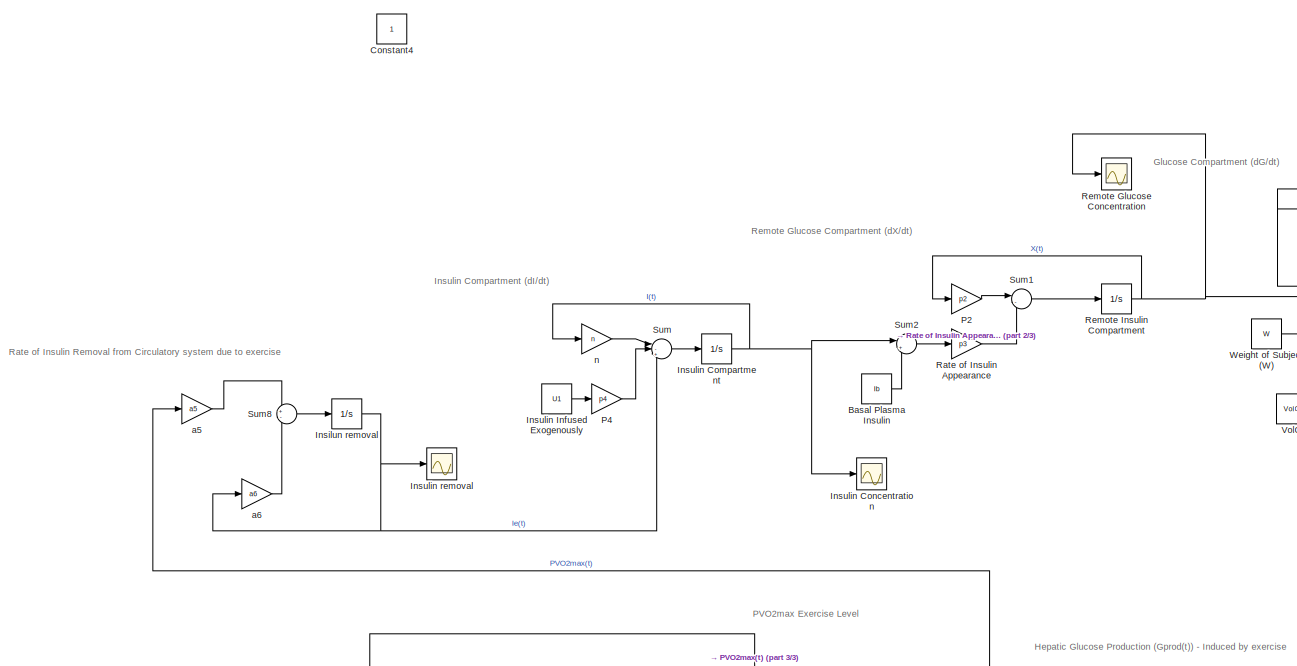
[diagram: root canvas - part 1/3, top center region]
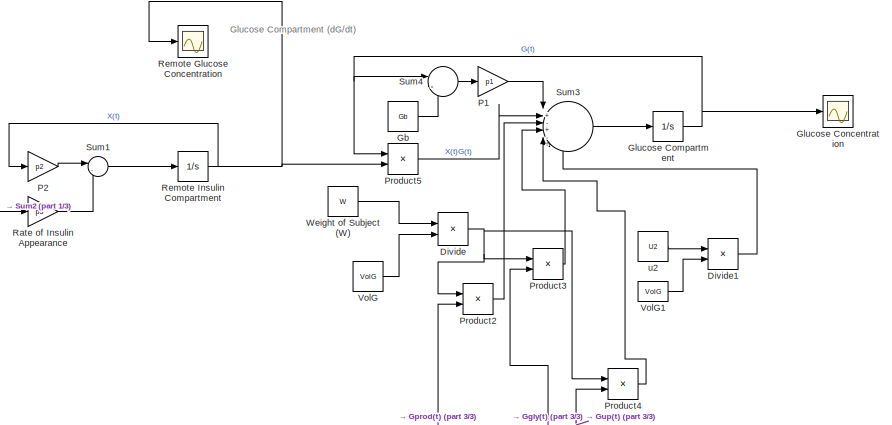
[diagram: root canvas - part 2/3, top right region]
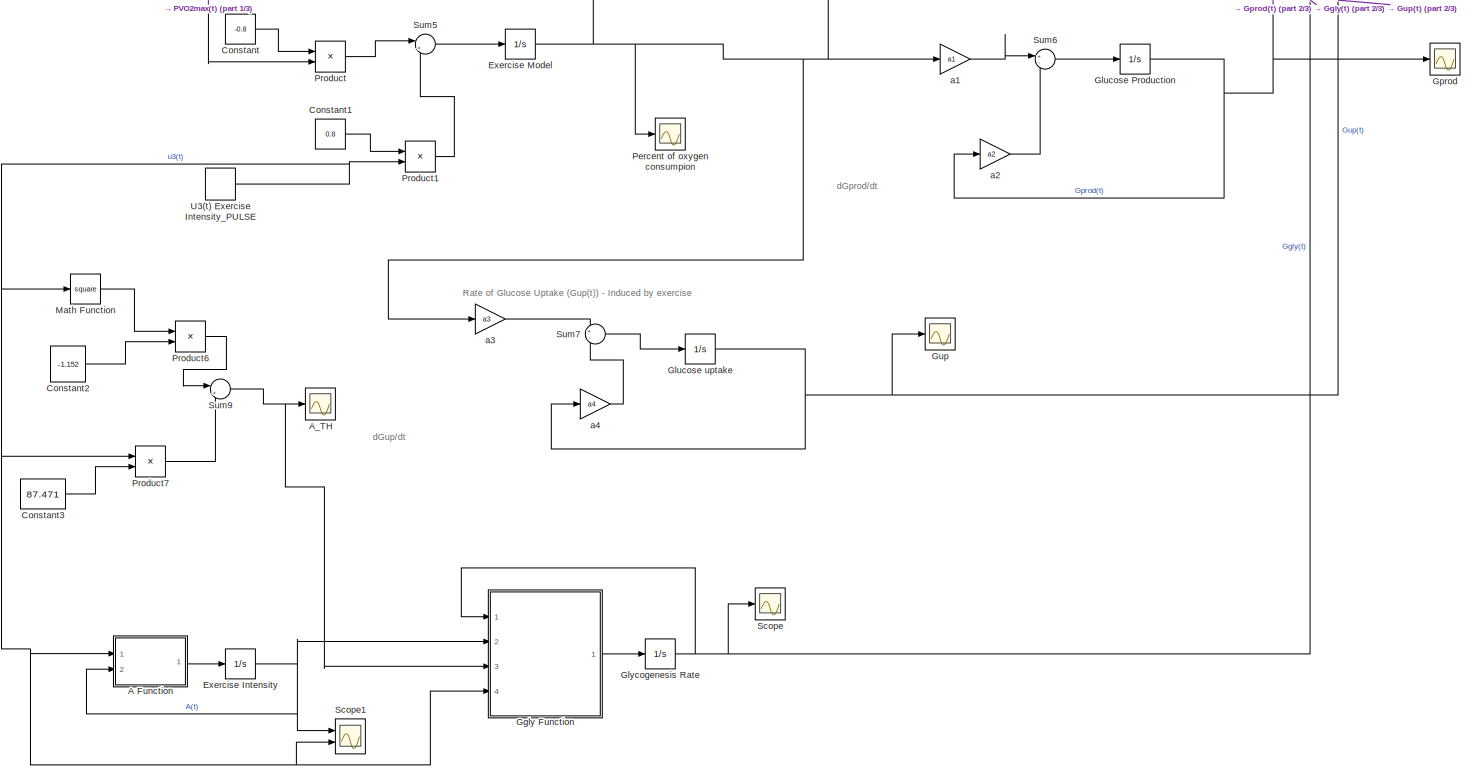
[diagram: root canvas - part 3/3, full width, bottom band]
MODEL slx_c7d6a4aab197
KIND model
CONFIG AbsTol = auto
CONFIG EnableMultiTasking = off
CONFIG FixedStep = auto
CONFIG MaxStep = auto
CONFIG MinStep = auto
CONFIG RelTol = 1e-3
CONFIG SampleTimeConstraint = Unconstrained
CONFIG SolverName = VariableStepAuto
CONFIG StartTime = 0.0
CONFIG StopTime = 2000
WORKSPACE source: mxarray member
WORKSPACE Gb = 100
WORKSPACE Ib = 0.2
WORKSPACE U1 = 0
WORKSPACE U2 = 0
WORKSPACE U3 = 0.4
WORKSPACE VolG = 117
WORKSPACE W = 70
WORKSPACE a1 = 0.00158
WORKSPACE a2 = 0.056
WORKSPACE a3 = 0.00195
WORKSPACE a4 = 0.0485
WORKSPACE a5 = 0.00125
WORKSPACE a6 = 0.075
WORKSPACE n = 0.142
WORKSPACE p1 = 0.035
WORKSPACE p2 = 0.05
WORKSPACE p3 = 2.8e-05
WORKSPACE p4 = 0.098
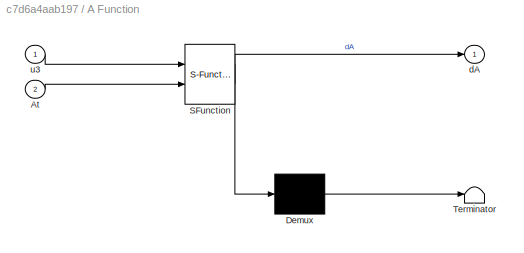
BLOCK [SubSystem] A Function
  ErrorFcn = Stateflow.Translate.translate
  PermitHierarchicalResolution = ExplicitOnly
  Ports = [2, 1]
  RequestExecContextInheritance = off
  SFBlockType = MATLAB Function
  TreatAsAtomicUnit = on
BLOCK [Demux] A Function/ Demux 
  Outputs = 1
  Ports = [1, 1]
BLOCK [S-Function] A Function/ SFunction 
  EnableBusSupport = on
  FunctionName = sf_sfun
  PortCounts = [2 2]
  Ports = [2, 2]
  SFcnIsStateOwnerBlock = off
  SFunctionDeploymentMode = off
  Tag = Stateflow S-Function 1
BLOCK [Terminator] A Function/ Terminator 
BLOCK [Inport] A Function/At
  Port = 2
BLOCK [Outport] A Function/dA
BLOCK [Inport] A Function/u3
BLOCK [Scope] A_TH
  Floating = off
  NumInputPorts = 1
  Ports = [1]
  ScopeSpecificationString = Simulink.scopes.TimeScopeBlockCfg('CurrentConfiguration', extmgr.ConfigurationSet(extmgr.Configuration('Core','General UI',true),extmgr.Configuration('Core','Source UI',true),extmgr.Configuration('Sources','WiredSimulink',true,'DataLoggingVariableName','ScopeData4'),extmgr.Configuration('Visuals','Time Domain',true,'SerializedDisplays',{struct('MinYLimReal','-0.000002','MaxYLimReal','0.000001','YL...<+1476ch>
BLOCK [Constant] Basal Plasma Insulin 
  Value = Ib
  VectorParams1D = off
BLOCK [Constant] Constant
  Value = -0.8
BLOCK [Constant] Constant1
  Value = 0.8
BLOCK [Constant] Constant2
  Value = -1.152
BLOCK [Constant] Constant3
  Value = 87.471
BLOCK [Constant] Constant4
  IOType = siggen
BLOCK [Product] Divide
  Inputs = */
  Ports = [2, 1]
BLOCK [Product] Divide1
  Inputs = */
  Ports = [2, 1]
BLOCK [Integrator] Exercise Intensity
  Ports = [1, 1]
BLOCK [Integrator] Exercise Model 
  Ports = [1, 1]
BLOCK [Constant] Gb
  NameLocation = top
  Value = Gb
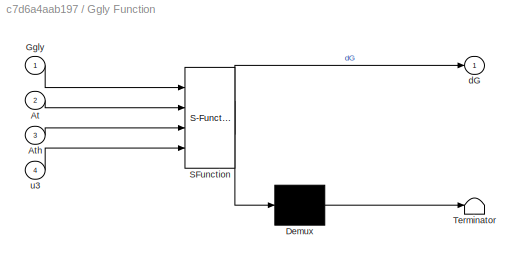
BLOCK [SubSystem] Ggly Function
  ErrorFcn = Stateflow.Translate.translate
  PermitHierarchicalResolution = ExplicitOnly
  Ports = [4, 1]
  RequestExecContextInheritance = off
  SFBlockType = MATLAB Function
  TreatAsAtomicUnit = on
BLOCK [Demux] Ggly Function/ Demux 
  Outputs = 1
  Ports = [1, 1]
BLOCK [S-Function] Ggly Function/ SFunction 
  EnableBusSupport = on
  FunctionName = sf_sfun
  PortCounts = [4 2]
  Ports = [4, 2]
  SFcnIsStateOwnerBlock = off
  SFunctionDeploymentMode = off
  Tag = Stateflow S-Function 2
BLOCK [Terminator] Ggly Function/ Terminator 
BLOCK [Inport] Ggly Function/At
  Port = 2
BLOCK [Inport] Ggly Function/Ath
  Port = 3
BLOCK [Inport] Ggly Function/Ggly
BLOCK [Outport] Ggly Function/dG
BLOCK [Inport] Ggly Function/u3
  Port = 4
BLOCK [Integrator] Glucose Compartment
  InitialCondition = Gb
  Ports = [1, 1]
BLOCK [Scope] Glucose Concentration
  Floating = off
  NumInputPorts = 1
  Ports = [1]
  ScopeSpecificationString = Simulink.scopes.TimeScopeBlockCfg('CurrentConfiguration', extmgr.ConfigurationSet(extmgr.Configuration('Core','General UI',true),extmgr.Configuration('Core','Source UI',true),extmgr.Configuration('Sources','WiredSimulink',true,'DataLoggingVariableName','ScopeData1'),extmgr.Configuration('Visuals','Time Domain',true,'SerializedDisplays',{struct('MinYLimReal','-130.42093','MaxYLimReal','126.86078','...<+1823ch>
BLOCK [Integrator] Glucose Production
  Ports = [1, 1]
BLOCK [Integrator] Glucose uptake
  Ports = [1, 1]
BLOCK [Integrator] Glycogenesis Rate
  Ports = [1, 1]
BLOCK [Scope] Gprod
  Floating = off
  NumInputPorts = 1
  Ports = [1]
  ScopeSpecificationString = Simulink.scopes.TimeScopeBlockCfg('CurrentConfiguration', extmgr.ConfigurationSet(extmgr.Configuration('Core','General UI',true),extmgr.Configuration('Core','Source UI',true),extmgr.Configuration('Sources','WiredSimulink',true,'DataLoggingVariableName','ScopeData2'),extmgr.Configuration('Visuals','Time Domain',true,'SerializedDisplays',{struct('MinYLimReal','-0.00141','MaxYLimReal','0.01265','YLab...<+1787ch>
BLOCK [Scope] Gup
  Floating = off
  NumInputPorts = 1
  Ports = [1]
  ScopeSpecificationString = Simulink.scopes.TimeScopeBlockCfg('CurrentConfiguration', extmgr.ConfigurationSet(extmgr.Configuration('Core','General UI',true),extmgr.Configuration('Core','Source UI',true),extmgr.Configuration('Sources','WiredSimulink',true,'DataLoggingVariableName','ScopeData3'),extmgr.Configuration('Visuals','Time Domain',true,'SerializedDisplays',{struct('MinYLimReal','-0.00199','MaxYLimReal','0.01794','YLab...<+1800ch>
BLOCK [Integrator] Insilun removal
  Ports = [1, 1]
BLOCK [Integrator] Insulin Compartment
  Ports = [1, 1]
BLOCK [Scope] Insulin Concentration
  Floating = off
  NumInputPorts = 1
  Ports = [1]
  ScopeSpecificationString = Simulink.scopes.TimeScopeBlockCfg('CurrentConfiguration', extmgr.ConfigurationSet(extmgr.Configuration('Core','General UI',true),extmgr.Configuration('Core','Source UI',true),extmgr.Configuration('Sources','WiredSimulink',true,'DataLoggingVariableName','ScopeData2'),extmgr.Configuration('Visuals','Time Domain',true,'SerializedDisplays',{struct('MinYLimReal','-0.05282','MaxYLimReal','0.00587','YLab...<+1820ch>
BLOCK [Constant] Insulin Infused Exogenously
  NameLocation = top
  OutMax = 100
  OutMin = 0
  Value = U1
BLOCK [Scope] Insulin removal 
  Floating = off
  NumInputPorts = 1
  Ports = [1]
  ScopeSpecificationString = Simulink.scopes.TimeScopeBlockCfg('CurrentConfiguration', extmgr.ConfigurationSet(extmgr.Configuration('Core','General UI',true),extmgr.Configuration('Core','Source UI',true),extmgr.Configuration('Sources','WiredSimulink',true,'DataLoggingVariableName','ScopeData1'),extmgr.Configuration('Visuals','Time Domain',true,'SerializedDisplays',{struct('MinYLimReal','-0.00123','MaxYLimReal','0.0111','YLabe...<+1792ch>
BLOCK [Math] Math Function
  Operator = square
  Ports = [1, 1]
BLOCK [Gain] P1
  Gain = p1
BLOCK [Gain] P2
  Gain = p2
BLOCK [Gain] P4
  Gain = p4
BLOCK [Scope] Percent of oxygen consumpion 
  Floating = off
  NumInputPorts = 1
  Ports = [1]
  ScopeSpecificationString = Simulink.scopes.TimeScopeBlockCfg('CurrentConfiguration', extmgr.ConfigurationSet(extmgr.Configuration('Core','General UI',true),extmgr.Configuration('Core','Source UI',true),extmgr.Configuration('Sources','WiredSimulink',true,'DataLoggingVariableName','ScopeData1'),extmgr.Configuration('Visuals','Time Domain',true,'SerializedDisplays',{struct('MinYLimReal','-1.00000','MaxYLimReal','1.00000','YLab...<+1438ch>
BLOCK [Product] Product
  Ports = [2, 1]
BLOCK [Product] Product1
  Ports = [2, 1]
BLOCK [Product] Product2
  Ports = [2, 1]
BLOCK [Product] Product3
  Ports = [2, 1]
BLOCK [Product] Product4
  Ports = [2, 1]
BLOCK [Product] Product5
  Ports = [2, 1]
BLOCK [Product] Product6
  Ports = [2, 1]
BLOCK [Product] Product7
  Ports = [2, 1]
BLOCK [Gain] Rate of Insulin Appearance 
  Gain = p3
BLOCK [Scope] Remote Glucose Concentration
  Floating = off
  NumInputPorts = 1
  Ports = [1]
  ScopeSpecificationString = Simulink.scopes.TimeScopeBlockCfg('CurrentConfiguration', extmgr.ConfigurationSet(extmgr.Configuration('Core','General UI',true),extmgr.Configuration('Core','Source UI',true),extmgr.Configuration('Sources','WiredSimulink',true,'DataLoggingVariableName','ScopeData3'),extmgr.Configuration('Visuals','Time Domain',true,'SerializedDisplays',{struct('MinYLimReal','-0.00016','MaxYLimReal','0.00002','YLab...<+1511ch>
BLOCK [Integrator] Remote Insulin Compartment
  Ports = [1, 1]
BLOCK [Scope] Scope
  Floating = off
  NumInputPorts = 1
  Ports = [1]
  ScopeSpecificationString = Simulink.scopes.TimeScopeBlockCfg('CurrentConfiguration', extmgr.ConfigurationSet(extmgr.Configuration('Core','General UI',true),extmgr.Configuration('Core','Source UI',true),extmgr.Configuration('Sources','WiredSimulink',true,'DataLoggingVariableName','ScopeData1'),extmgr.Configuration('Visuals','Time Domain',true,'SerializedDisplays',{struct('MinYLimReal','-0.55754','MaxYLimReal','5.01787','YLab...<+1366ch>
BLOCK [Scope] Scope1
  Floating = off
  NumInputPorts = 2
  Ports = [2]
  ScopeSpecificationString = Simulink.scopes.TimeScopeBlockCfg('CurrentConfiguration', extmgr.ConfigurationSet(extmgr.Configuration('Core','General UI',true),extmgr.Configuration('Core','Source UI',true),extmgr.Configuration('Sources','WiredSimulink',true,'DataLoggingVariableName','ScopeData2'),extmgr.Configuration('Visuals','Time Domain',true,'SerializedDisplays',{struct('MinYLimReal','-0.12316','MaxYLimReal','0.24229','YLab...<+1798ch>
BLOCK [Sum] Sum
  Inputs = |-+-
  Ports = [3, 1]
BLOCK [Sum] Sum1
  Inputs = |-+
  Ports = [2, 1]
BLOCK [Sum] Sum2
  Inputs = |+-
  Ports = [2, 1]
BLOCK [Sum] Sum3
  Inputs = |+-+--+
  Ports = [6, 1]
BLOCK [Sum] Sum4
  Inputs = |-+
  Ports = [2, 1]
BLOCK [Sum] Sum5
  Inputs = |++
  Ports = [2, 1]
BLOCK [Sum] Sum6
  Inputs = +-
  Ports = [2, 1]
BLOCK [Sum] Sum7
  Inputs = +-
  Ports = [2, 1]
BLOCK [Sum] Sum8
  Inputs = +-
  Ports = [2, 1]
BLOCK [Sum] Sum9
  Inputs = |++
  Ports = [2, 1]
BLOCK [DiscretePulseGenerator] U3(t) Exercise Intensity_PULSE
  Amplitude = U3
  Period = 2000
  Ports = [0, 1]
  PulseType = Time based
  PulseWidth = 25
BLOCK [Constant] VolG
  Value = VolG
BLOCK [Constant] VolG1
  Value = VolG
BLOCK [Constant] Weight of Subject (W)
  Value = W
BLOCK [Gain] a1
  Gain = a1
BLOCK [Gain] a2
  Gain = a2
BLOCK [Gain] a3
  Gain = a3
BLOCK [Gain] a4
  Gain = a4
BLOCK [Gain] a5
  Gain = a5
BLOCK [Gain] a6
  Gain = a6
BLOCK [Gain] n
  Gain = n
  NameLocation = top
BLOCK [Constant] u2
  Value = U2
ANNOTATION (root): Glucose Compartment (dG/dt)
ANNOTATION (root): Hepatic Glucose Production (Gprod(t)) - Induced by exercise
ANNOTATION (root): Insulin Compartment (dI/dt)
ANNOTATION (root): PVO2max Exercise Level
ANNOTATION (root): Rate of Glucose Uptake (Gup(t)) - Induced by exercise
ANNOTATION (root): Rate of Insulin Removal from Circulatory system due to exercise
ANNOTATION (root): Remote Glucose Compartment (dX/dt)
ANNOTATION (root): dGprod/dt
ANNOTATION (root): dGup/dt
LINE A Function:1 -> Exercise Intensity:1
LINE Basal Plasma Insulin :1 -> Sum2:2
LINE Constant1:1 -> Product1:1
LINE Constant2:1 -> Product6:2
LINE Constant3:1 -> Product7:2
LINE Constant:1 -> Product:1
LINE Divide1:1 -> Sum3:6
NET Divide:1 -> Product2:1, Product3:1, Product4:1
NET Exercise Intensity:1 -> A Function:2, Ggly Function:2, Scope1:1
NET Exercise Model :1 -> Percent of oxygen consumpion :1, Product:2, a1:1, a3:1, a5:1
LINE Gb:1 -> Sum4:2
LINE Ggly Function:1 -> Glycogenesis Rate:1
NET Glucose Compartment:1 -> Glucose Concentration:1, Product5:1, Sum4:1
NET Glucose Production:1 -> Gprod:1, Product2:2, a2:1
NET Glucose uptake:1 -> Gup:1, Product4:2, a4:1
NET Glycogenesis Rate:1 -> Ggly Function:1, Product3:2, Scope:1
NET Insilun removal:1 -> Insulin removal :1, Sum:3, a6:1
NET Insulin Compartment:1 -> Insulin Concentration:1, Sum2:1, n:1
LINE Insulin Infused Exogenously:1 -> P4:1
LINE Math Function:1 -> Product6:1
LINE P1:1 -> Sum3:1
LINE P2:1 -> Sum1:1
LINE P4:1 -> Sum:2
LINE Product1:1 -> Sum5:2
LINE Product2:1 -> Sum3:3
LINE Product3:1 -> Sum3:4
LINE Product4:1 -> Sum3:5
LINE Product5:1 -> Sum3:2
LINE Product6:1 -> Sum9:1
LINE Product7:1 -> Sum9:2
LINE Product:1 -> Sum5:1
LINE Rate of Insulin Appearance :1 -> Sum1:2
NET Remote Insulin Compartment:1 -> P2:1, Product5:2, Remote Glucose Concentration:1
LINE Sum1:1 -> Remote Insulin Compartment:1
LINE Sum2:1 -> Rate of Insulin Appearance :1
LINE Sum3:1 -> Glucose Compartment:1
LINE Sum4:1 -> P1:1
LINE Sum5:1 -> Exercise Model :1
LINE Sum6:1 -> Glucose Production:1
LINE Sum7:1 -> Glucose uptake:1
LINE Sum8:1 -> Insilun removal:1
NET Sum9:1 -> A_TH:1, Ggly Function:3
LINE Sum:1 -> Insulin Compartment:1
NET U3(t) Exercise Intensity_PULSE:1 -> A Function:1, Ggly Function:4, Math Function:1, Product1:2, Product7:1, Scope1:2
LINE VolG1:1 -> Divide1:2
LINE VolG:1 -> Divide:2
LINE Weight of Subject (W):1 -> Divide:1
LINE a1:1 -> Sum6:1
LINE a2:1 -> Sum6:2
LINE a3:1 -> Sum7:1
LINE a4:1 -> Sum7:2
LINE a5:1 -> Sum8:1
LINE a6:1 -> Sum8:2
LINE n:1 -> Sum:1
LINE u2:1 -> Divide1:1
note: NET lines group one-source signal fan-out (src -> all destinations, sorted); 1:1 wires keep LINE
CHART A Function states=1 transitions=1
  STATE_LABEL 'eML_blk_kernel()'
  STATE_LABEL 'SCRIPT:\nfunction dA = fcn(u3, At)\n    if u3 == 0\n        dA = -(At/0.001);\n        return\n    else\n        dA = u3;\n        return\n    end\n'
CHART Ggly Function states=1 transitions=1
  STATE_LABEL 'eML_blk_kernel()'
  STATE_LABEL 'SCRIPT:\nfunction dG = Ggly(Ggly, At, Ath, u3)\nk = 0.0108;\nT1 = 6;\ndG = 0;\n    if u3 == 0\n        dG = -(Ggly/T1);\n        return\n    end\n    if At < Ath\n        dG = 0;\n        return\n    end\n    if At >= Ath\n        dG = k;\n        return\n    end\n\n'
CHART  states=0 transitions=0
CHART  states=0 transitions=0
